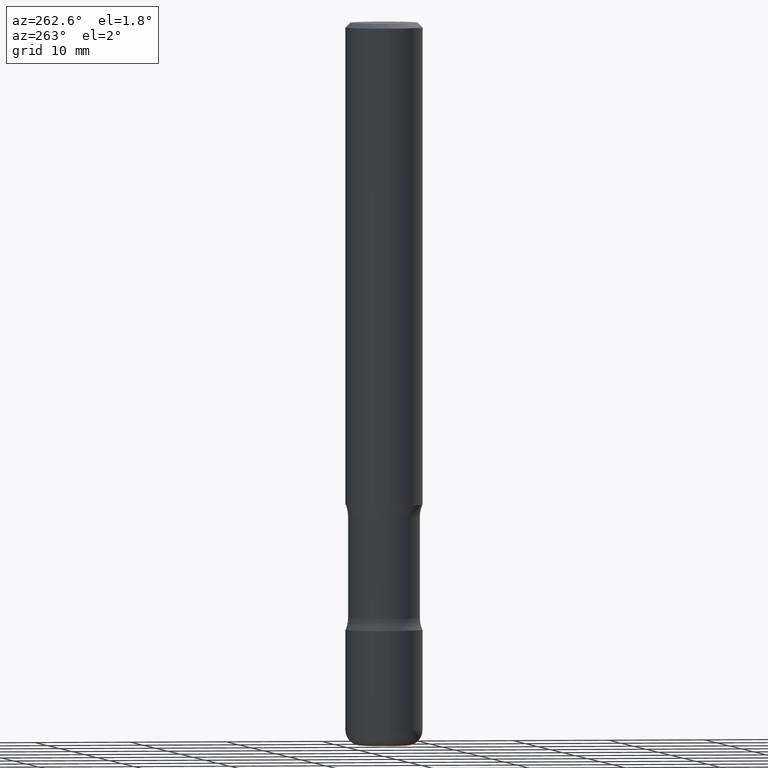
[diagram: clean part render]
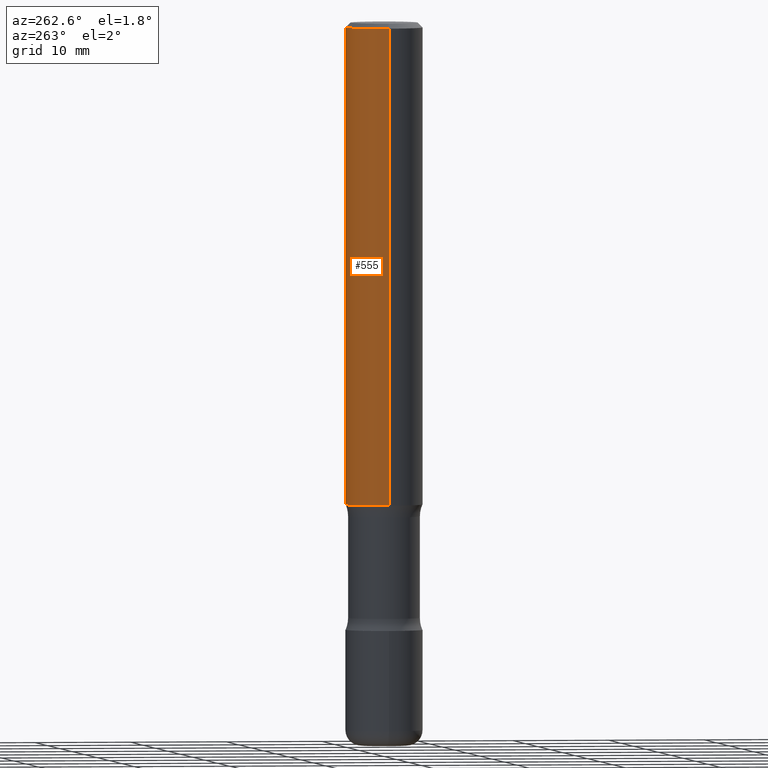
[diagram: same view with one face highlighted and labeled with its STEP entity id]
A machine part, auxiliary view. The second image highlights one B-rep face of the part: STEP entity #555.
In plain terms, the highlighted cylindrical surface (partial cylindrical patch) has radius 4.0005 mm, axis along (-0, 0, 1).
Its self-contained STEP definition (entity closure, byte-faithful):
#85 = CIRCLE ( 'NONE', #182, 0.1575000000000000844 ) ;
#89 = CYLINDRICAL_SURFACE ( 'NONE', #496, 0.1575000000000003064 ) ;
#92 = CARTESIAN_POINT ( 'NONE',  ( 0.1575000000000005007, -7.972797637248326287E-15, -1.968500000000001249 ) ) ;
#101 = CARTESIAN_POINT ( 'NONE',  ( 4.890937612370289799E-31, -6.982962677686315028E-17, -0.02000000000000006981 ) ) ;
#143 = CARTESIAN_POINT ( 'NONE',  ( 0.000000000000000000, 0.000000000000000000, 0.000000000000000000 ) ) ;
#168 = DIRECTION ( 'NONE',  ( -2.445468806185136877E-29, 3.491481338843145188E-15, 1.000000000000000000 ) ) ;
#170 = EDGE_CURVE ( 'NONE', #544, #207, #516, .T. ) ;
#172 = ORIENTED_EDGE ( 'NONE', *, *, #174, .T. ) ;
#174 = EDGE_CURVE ( 'NONE', #259, #390, #431, .T. ) ;
#176 = ORIENTED_EDGE ( 'NONE', *, *, #440, .T. ) ;
#182 = AXIS2_PLACEMENT_3D ( 'NONE', #101, #439, #319 ) ;
#187 = FACE_OUTER_BOUND ( 'NONE', #424, .T. ) ;
#194 = CARTESIAN_POINT ( 'NONE',  ( 4.813905344975444077E-29, -6.872981015512735652E-15, -1.968500000000001249 ) ) ;
#207 = VERTEX_POINT ( 'NONE', #249 ) ;
#217 = ORIENTED_EDGE ( 'NONE', *, *, #170, .F. ) ;
#249 = CARTESIAN_POINT ( 'NONE',  ( 0.1575000000000000844, -1.150358061425880064E-15, -0.02000000000000006981 ) ) ;
#257 = AXIS2_PLACEMENT_3D ( 'NONE', #194, #313, #475 ) ;
#259 = VERTEX_POINT ( 'NONE', #376 ) ;
#260 = CARTESIAN_POINT ( 'NONE',  ( -0.1575000000000003064, 1.119104808822159970E-15, -7.747322767151490998E-30 ) ) ;
#278 = CIRCLE ( 'NONE', #257, 0.1575000000000005007 ) ;
#313 = DIRECTION ( 'NONE',  ( -2.445468806185136597E-29, 3.491481338843145583E-15, 1.000000000000000000 ) ) ;
#319 = DIRECTION ( 'NONE',  ( 1.000000000000000000, -6.982962677686267499E-15, 0.000000000000000000 ) ) ;
#323 = VECTOR ( 'NONE', #168, 39.37007874015748143 ) ;
#335 = DIRECTION ( 'NONE',  ( -2.445468806185136877E-29, 3.491481338843145188E-15, 1.000000000000000000 ) ) ;
#376 = CARTESIAN_POINT ( 'NONE',  ( -0.1575000000000005007, -2.352300512322634377E-15, -1.968500000000001249 ) ) ;
#378 = ORIENTED_EDGE ( 'NONE', *, *, #531, .F. ) ;
#382 = CARTESIAN_POINT ( 'NONE',  ( 0.1575000000000003064, -1.099816621735589255E-15, 7.679978421878613447E-30 ) ) ;
#390 = VERTEX_POINT ( 'NONE', #465 ) ;
#396 = DIRECTION ( 'NONE',  ( -2.445468806185136597E-29, 3.491481338843145583E-15, 1.000000000000000000 ) ) ;
#424 = EDGE_LOOP ( 'NONE', ( #176, #172, #378, #217 ) ) ;
#431 = LINE ( 'NONE', #260, #323 ) ;
#432 = VECTOR ( 'NONE', #335, 39.37007874015748143 ) ;
#439 = DIRECTION ( 'NONE',  ( -2.445468806185136597E-29, 3.491481338843145583E-15, 1.000000000000000000 ) ) ;
#440 = EDGE_CURVE ( 'NONE', #544, #259, #278, .T. ) ;
#465 = CARTESIAN_POINT ( 'NONE',  ( -0.1575000000000000844, 1.029986994958724576E-15, -0.02000000000000006981 ) ) ;
#475 = DIRECTION ( 'NONE',  ( 1.000000000000000000, -6.982962677686269866E-15, 0.000000000000000000 ) ) ;
#488 = DIRECTION ( 'NONE',  ( 1.000000000000000000, -6.982962677686267499E-15, 4.876176775795935793E-29 ) ) ;
#496 = AXIS2_PLACEMENT_3D ( 'NONE', #143, #396, #488 ) ;
#516 = LINE ( 'NONE', #382, #432 ) ;
#531 = EDGE_CURVE ( 'NONE', #207, #390, #85, .T. ) ;
#544 = VERTEX_POINT ( 'NONE', #92 ) ;
#555 = ADVANCED_FACE ( 'NONE', ( #187 ), #89, .T. ) ;